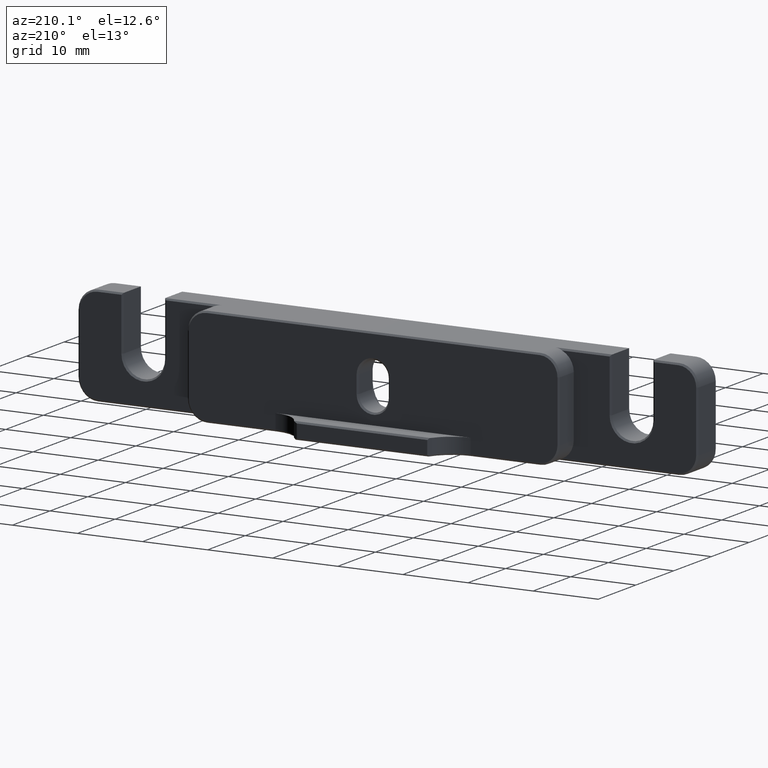
[diagram: clean part render]
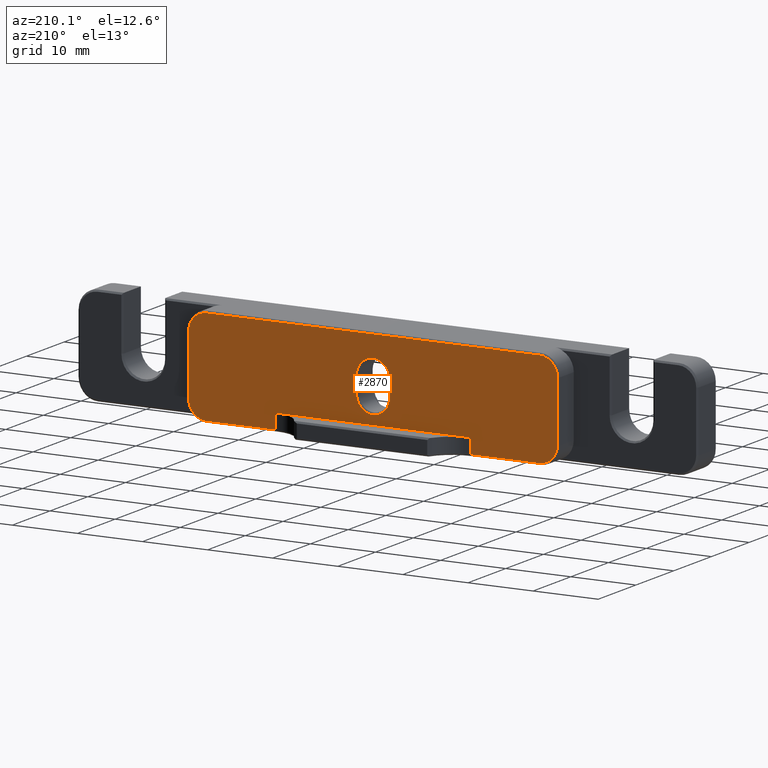
[diagram: same view with one face highlighted and labeled with its STEP entity id]
A machine part, auxiliary view. The second image highlights one B-rep face of the part: STEP entity #2870.
In plain terms, the highlighted planar face has unit normal (0, 1, 0).
Its self-contained STEP definition (entity closure, byte-faithful):
#60 = CARTESIAN_POINT ( 'NONE',  ( -2.534999999999981490, 8.900000000000000355, -1.095000000000001306 ) ) ;
#87 = LINE ( 'NONE', #4420, #3284 ) ;
#93 = EDGE_CURVE ( 'NONE', #2827, #1803, #2297, .T. ) ;
#96 = CARTESIAN_POINT ( 'NONE',  ( 2.534999999999981490, 8.900000000000000355, -1.095000000000000862 ) ) ;
#134 = ORIENTED_EDGE ( 'NONE', *, *, #1847, .T. ) ;
#187 = LINE ( 'NONE', #2761, #2352 ) ;
#208 = CIRCLE ( 'NONE', #2944, 2.534999999999981490 ) ;
#259 = EDGE_CURVE ( 'NONE', #336, #4550, #1206, .T. ) ;
#262 = CARTESIAN_POINT ( 'NONE',  ( 15.00000000000000000, 8.900000000000000355, -7.369999999999996554 ) ) ;
#336 = VERTEX_POINT ( 'NONE', #4621 ) ;
#338 = LINE ( 'NONE', #4500, #2617 ) ;
#388 = VECTOR ( 'NONE', #3524, 1000.000000000000000 ) ;
#480 = CIRCLE ( 'NONE', #3024, 2.749999999999995559 ) ;
#489 = ORIENTED_EDGE ( 'NONE', *, *, #3906, .T. ) ;
#513 = EDGE_CURVE ( 'NONE', #1803, #1008, #583, .T. ) ;
#520 = VERTEX_POINT ( 'NONE', #1722 ) ;
#522 = FACE_OUTER_BOUND ( 'NONE', #4674, .T. ) ;
#567 = CARTESIAN_POINT ( 'NONE',  ( -25.57499999999999574, 8.900000000000000355, 7.369999999999994778 ) ) ;
#583 = LINE ( 'NONE', #1359, #3381 ) ;
#650 = VERTEX_POINT ( 'NONE', #2978 ) ;
#688 = CARTESIAN_POINT ( 'NONE',  ( 2.534999999999981490, 8.900000000000000355, 1.534999999999998588 ) ) ;
#708 = DIRECTION ( 'NONE',  ( 1.000000000000000000, 0.000000000000000000, 0.000000000000000000 ) ) ;
#730 = VECTOR ( 'NONE', #3153, 1000.000000000000000 ) ;
#757 = DIRECTION ( 'NONE',  ( -0.000000000000000000, -1.000000000000000000, -0.000000000000000000 ) ) ;
#820 = VECTOR ( 'NONE', #4252, 1000.000000000000000 ) ;
#830 = DIRECTION ( 'NONE',  ( -0.000000000000000000, -0.000000000000000000, -1.000000000000000000 ) ) ;
#891 = ORIENTED_EDGE ( 'NONE', *, *, #259, .T. ) ;
#924 = DIRECTION ( 'NONE',  ( 0.000000000000000000, 0.000000000000000000, -1.000000000000000000 ) ) ;
#956 = VERTEX_POINT ( 'NONE', #4068 ) ;
#986 = DIRECTION ( 'NONE',  ( 0.000000000000000000, 1.000000000000000000, 0.000000000000000000 ) ) ;
#1008 = VERTEX_POINT ( 'NONE', #60 ) ;
#1017 = LINE ( 'NONE', #4247, #3186 ) ;
#1044 = CARTESIAN_POINT ( 'NONE',  ( 15.00000000000000000, 8.900000000000005684, -5.080000000000000959 ) ) ;
#1054 = CARTESIAN_POINT ( 'NONE',  ( -2.685038107130569228E-16, 8.900000000000000355, 1.534999999999998588 ) ) ;
#1114 = CARTESIAN_POINT ( 'NONE',  ( -15.00000000000000000, 8.900000000000005684, -5.080000000000000071 ) ) ;
#1123 = EDGE_CURVE ( 'NONE', #3710, #3349, #3902, .T. ) ;
#1189 = EDGE_CURVE ( 'NONE', #4623, #336, #2446, .T. ) ;
#1206 = LINE ( 'NONE', #4445, #3439 ) ;
#1209 = CARTESIAN_POINT ( 'NONE',  ( -25.57499999999999574, 8.900000000000000355, -4.620000000000000995 ) ) ;
#1220 = ORIENTED_EDGE ( 'NONE', *, *, #1189, .T. ) ;
#1225 = EDGE_CURVE ( 'NONE', #1474, #3710, #1017, .T. ) ;
#1254 = ORIENTED_EDGE ( 'NONE', *, *, #3086, .T. ) ;
#1294 = DIRECTION ( 'NONE',  ( 1.000000000000000000, -0.000000000000000000, 0.000000000000000000 ) ) ;
#1301 = CARTESIAN_POINT ( 'NONE',  ( -15.00000000000000000, 8.900000000000005684, 7.619999999999999218 ) ) ;
#1344 = AXIS2_PLACEMENT_3D ( 'NONE', #1376, #986, #3936 ) ;
#1359 = CARTESIAN_POINT ( 'NONE',  ( -2.534999999999981490, 8.900000000000000355, -1.095000000000001306 ) ) ;
#1374 = DIRECTION ( 'NONE',  ( -0.000000000000000000, -1.000000000000000000, -0.000000000000000000 ) ) ;
#1376 = CARTESIAN_POINT ( 'NONE',  ( 0.000000000000000000, 8.900000000000000355, 0.000000000000000000 ) ) ;
#1415 = ORIENTED_EDGE ( 'NONE', *, *, #4114, .T. ) ;
#1434 = VERTEX_POINT ( 'NONE', #688 ) ;
#1474 = VERTEX_POINT ( 'NONE', #1114 ) ;
#1640 = CARTESIAN_POINT ( 'NONE',  ( 25.57500000000000284, 8.900000000000000355, -7.369999999999996554 ) ) ;
#1667 = CARTESIAN_POINT ( 'NONE',  ( 2.146193515505736735E-16, 8.900000000000000355, -1.095000000000000862 ) ) ;
#1678 = ORIENTED_EDGE ( 'NONE', *, *, #3455, .T. ) ;
#1722 = CARTESIAN_POINT ( 'NONE',  ( 25.57499999999999929, 8.900000000000000355, 7.369999999999994778 ) ) ;
#1787 = EDGE_CURVE ( 'NONE', #1434, #2827, #208, .T. ) ;
#1803 = VERTEX_POINT ( 'NONE', #2075 ) ;
#1847 = EDGE_CURVE ( 'NONE', #3147, #3349, #4708, .T. ) ;
#1861 = LINE ( 'NONE', #2789, #388 ) ;
#1908 = DIRECTION ( 'NONE',  ( 0.000000000000000000, 0.000000000000000000, 1.000000000000000000 ) ) ;
#1966 = ORIENTED_EDGE ( 'NONE', *, *, #513, .T. ) ;
#1983 = DIRECTION ( 'NONE',  ( 0.000000000000000000, 0.000000000000000000, 1.000000000000000000 ) ) ;
#2012 = DIRECTION ( 'NONE',  ( -0.000000000000000000, -1.000000000000000000, -0.000000000000000000 ) ) ;
#2075 = CARTESIAN_POINT ( 'NONE',  ( -2.534999999999981490, 8.900000000000000355, 1.534999999999998144 ) ) ;
#2098 = CARTESIAN_POINT ( 'NONE',  ( -2.685038107130569228E-16, 8.900000000000000355, 1.534999999999998588 ) ) ;
#2167 = EDGE_CURVE ( 'NONE', #650, #3667, #187, .T. ) ;
#2198 = EDGE_CURVE ( 'NONE', #1474, #956, #3937, .T. ) ;
#2297 = CIRCLE ( 'NONE', #3009, 2.534999999999981490 ) ;
#2301 = VERTEX_POINT ( 'NONE', #567 ) ;
#2302 = DIRECTION ( 'NONE',  ( -1.836970198721029688E-16, 0.000000000000000000, 1.000000000000000000 ) ) ;
#2339 = ORIENTED_EDGE ( 'NONE', *, *, #2198, .T. ) ;
#2348 = DIRECTION ( 'NONE',  ( 0.000000000000000000, 0.000000000000000000, 1.000000000000000000 ) ) ;
#2352 = VECTOR ( 'NONE', #924, 1000.000000000000000 ) ;
#2406 = PLANE ( 'NONE',  #1344 ) ;
#2419 = CIRCLE ( 'NONE', #2430, 2.749999999999995559 ) ;
#2430 = AXIS2_PLACEMENT_3D ( 'NONE', #2688, #3824, #3441 ) ;
#2446 = CIRCLE ( 'NONE', #4053, 2.749999999999995559 ) ;
#2456 = CARTESIAN_POINT ( 'NONE',  ( -25.57499999999999574, 8.900000000000000355, -7.369999999999996554 ) ) ;
#2461 = FACE_BOUND ( 'NONE', #4296, .T. ) ;
#2617 = VECTOR ( 'NONE', #2302, 1000.000000000000000 ) ;
#2667 = AXIS2_PLACEMENT_3D ( 'NONE', #4352, #4217, #2348 ) ;
#2688 = CARTESIAN_POINT ( 'NONE',  ( -25.57499999999999574, 8.900000000000000355, 4.619999999999999218 ) ) ;
#2761 = CARTESIAN_POINT ( 'NONE',  ( 28.32499999999999929, 8.900000000000000355, 0.000000000000000000 ) ) ;
#2789 = CARTESIAN_POINT ( 'NONE',  ( -25.57499999999999218, 8.900000000000000355, -7.369999999999996554 ) ) ;
#2823 = EDGE_CURVE ( 'NONE', #3667, #3147, #4665, .T. ) ;
#2827 = VERTEX_POINT ( 'NONE', #3609 ) ;
#2870 = ADVANCED_FACE ( 'NONE', ( #2461, #522 ), #2406, .T. ) ;
#2893 = CARTESIAN_POINT ( 'NONE',  ( 25.57499999999999929, 8.900000000000000355, 4.619999999999999218 ) ) ;
#2944 = AXIS2_PLACEMENT_3D ( 'NONE', #2098, #1374, #3204 ) ;
#2978 = CARTESIAN_POINT ( 'NONE',  ( 28.32499999999999574, 8.900000000000000355, 4.619999999999999218 ) ) ;
#2997 = ORIENTED_EDGE ( 'NONE', *, *, #1225, .F. ) ;
#3009 = AXIS2_PLACEMENT_3D ( 'NONE', #1054, #757, #3314 ) ;
#3024 = AXIS2_PLACEMENT_3D ( 'NONE', #2893, #4681, #4314 ) ;
#3086 = EDGE_CURVE ( 'NONE', #4036, #1434, #338, .T. ) ;
#3097 = CIRCLE ( 'NONE', #4079, 2.534999999999981490 ) ;
#3110 = DIRECTION ( 'NONE',  ( 0.000000000000000000, 1.000000000000000000, 0.000000000000000000 ) ) ;
#3147 = VERTEX_POINT ( 'NONE', #1640 ) ;
#3153 = DIRECTION ( 'NONE',  ( -1.000000000000000000, 0.000000000000000000, 0.000000000000000000 ) ) ;
#3186 = VECTOR ( 'NONE', #1294, 1000.000000000000000 ) ;
#3204 = DIRECTION ( 'NONE',  ( 0.000000000000000000, 0.000000000000000000, 1.000000000000000000 ) ) ;
#3239 = ORIENTED_EDGE ( 'NONE', *, *, #1787, .T. ) ;
#3284 = VECTOR ( 'NONE', #708, 1000.000000000000000 ) ;
#3314 = DIRECTION ( 'NONE',  ( 0.000000000000000000, 0.000000000000000000, 1.000000000000000000 ) ) ;
#3349 = VERTEX_POINT ( 'NONE', #3661 ) ;
#3381 = VECTOR ( 'NONE', #4717, 1000.000000000000000 ) ;
#3439 = VECTOR ( 'NONE', #1908, 1000.000000000000000 ) ;
#3441 = DIRECTION ( 'NONE',  ( 0.000000000000000000, 0.000000000000000000, 1.000000000000000000 ) ) ;
#3455 = EDGE_CURVE ( 'NONE', #956, #4623, #1861, .T. ) ;
#3524 = DIRECTION ( 'NONE',  ( -1.000000000000000000, 0.000000000000000000, 0.000000000000000000 ) ) ;
#3609 = CARTESIAN_POINT ( 'NONE',  ( -2.685038107130569228E-16, 8.900000000000000355, 4.069999999999979856 ) ) ;
#3648 = ORIENTED_EDGE ( 'NONE', *, *, #2823, .T. ) ;
#3661 = CARTESIAN_POINT ( 'NONE',  ( 15.00000000000000000, 8.900000000000005684, -7.369999999999997442 ) ) ;
#3667 = VERTEX_POINT ( 'NONE', #3842 ) ;
#3710 = VERTEX_POINT ( 'NONE', #1044 ) ;
#3725 = ORIENTED_EDGE ( 'NONE', *, *, #3873, .T. ) ;
#3824 = DIRECTION ( 'NONE',  ( 0.000000000000000000, 1.000000000000000000, 0.000000000000000000 ) ) ;
#3842 = CARTESIAN_POINT ( 'NONE',  ( 28.32499999999999929, 8.900000000000000355, -4.620000000000000995 ) ) ;
#3873 = EDGE_CURVE ( 'NONE', #520, #650, #480, .T. ) ;
#3877 = CARTESIAN_POINT ( 'NONE',  ( -28.32499999999999218, 8.900000000000000355, 4.619999999999999218 ) ) ;
#3902 = LINE ( 'NONE', #4100, #4071 ) ;
#3906 = EDGE_CURVE ( 'NONE', #2301, #520, #87, .T. ) ;
#3911 = ORIENTED_EDGE ( 'NONE', *, *, #2167, .T. ) ;
#3936 = DIRECTION ( 'NONE',  ( 0.000000000000000000, -0.000000000000000000, 1.000000000000000000 ) ) ;
#3937 = LINE ( 'NONE', #1301, #820 ) ;
#3944 = EDGE_CURVE ( 'NONE', #4550, #2301, #2419, .T. ) ;
#4011 = ORIENTED_EDGE ( 'NONE', *, *, #1123, .F. ) ;
#4036 = VERTEX_POINT ( 'NONE', #96 ) ;
#4053 = AXIS2_PLACEMENT_3D ( 'NONE', #1209, #3110, #1983 ) ;
#4068 = CARTESIAN_POINT ( 'NONE',  ( -15.00000000000000000, 8.900000000000005684, -7.369999999999997442 ) ) ;
#4071 = VECTOR ( 'NONE', #830, 1000.000000000000000 ) ;
#4079 = AXIS2_PLACEMENT_3D ( 'NONE', #1667, #2012, #4270 ) ;
#4100 = CARTESIAN_POINT ( 'NONE',  ( 15.00000000000000000, 8.900000000000005684, 7.619999999999999218 ) ) ;
#4114 = EDGE_CURVE ( 'NONE', #1008, #4036, #3097, .T. ) ;
#4217 = DIRECTION ( 'NONE',  ( 0.000000000000000000, 1.000000000000000000, 0.000000000000000000 ) ) ;
#4247 = CARTESIAN_POINT ( 'NONE',  ( -28.57499999999999574, 8.900000000000005684, -5.080000000000000959 ) ) ;
#4252 = DIRECTION ( 'NONE',  ( -0.000000000000000000, -0.000000000000000000, -1.000000000000000000 ) ) ;
#4270 = DIRECTION ( 'NONE',  ( 0.000000000000000000, 0.000000000000000000, 1.000000000000000000 ) ) ;
#4296 = EDGE_LOOP ( 'NONE', ( #1254, #3239, #4493, #1966, #1415 ) ) ;
#4314 = DIRECTION ( 'NONE',  ( 0.000000000000000000, 0.000000000000000000, 1.000000000000000000 ) ) ;
#4352 = CARTESIAN_POINT ( 'NONE',  ( 25.57500000000000284, 8.900000000000000355, -4.620000000000000995 ) ) ;
#4420 = CARTESIAN_POINT ( 'NONE',  ( 25.57499999999999929, 8.900000000000000355, 7.369999999999994778 ) ) ;
#4445 = CARTESIAN_POINT ( 'NONE',  ( -28.32499999999999218, 8.900000000000000355, 0.000000000000000000 ) ) ;
#4493 = ORIENTED_EDGE ( 'NONE', *, *, #93, .T. ) ;
#4500 = CARTESIAN_POINT ( 'NONE',  ( 2.534999999999981934, 8.900000000000000355, 4.656719453757777148E-16 ) ) ;
#4510 = ORIENTED_EDGE ( 'NONE', *, *, #3944, .T. ) ;
#4550 = VERTEX_POINT ( 'NONE', #3877 ) ;
#4621 = CARTESIAN_POINT ( 'NONE',  ( -28.32499999999999218, 8.900000000000000355, -4.620000000000000995 ) ) ;
#4623 = VERTEX_POINT ( 'NONE', #2456 ) ;
#4665 = CIRCLE ( 'NONE', #2667, 2.749999999999995559 ) ;
#4674 = EDGE_LOOP ( 'NONE', ( #3648, #134, #4011, #2997, #2339, #1678, #1220, #891, #4510, #489, #3725, #3911 ) ) ;
#4681 = DIRECTION ( 'NONE',  ( 0.000000000000000000, 1.000000000000000000, 0.000000000000000000 ) ) ;
#4708 = LINE ( 'NONE', #262, #730 ) ;
#4717 = DIRECTION ( 'NONE',  ( 1.836970198721029688E-16, 0.000000000000000000, -1.000000000000000000 ) ) ;